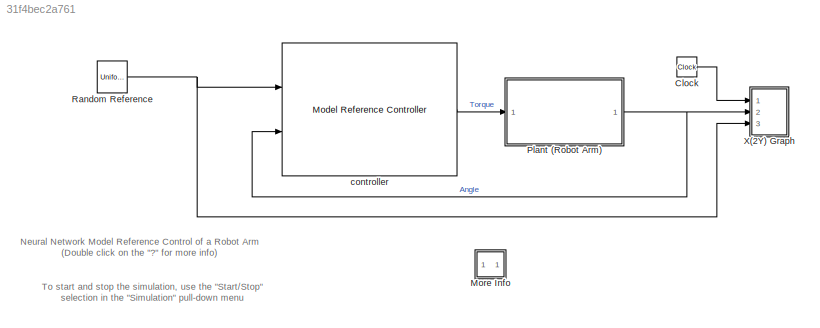
MODEL slx_31f4bec2a761
KIND model
CONFIG AbsTol = 1e-6
CONFIG EnableMultiTasking = off
CONFIG FixedStep = auto
CONFIG MaxStep = auto
CONFIG MinStep = auto
CONFIG RelTol = 1e-3
CONFIG SampleTimeConstraint = Unconstrained
CONFIG Solver = ode45
CONFIG SolverName = ode45
CONFIG StartTime = 0.0
CONFIG StopTime = 60
BLOCK [Clock] Clock
BLOCK [SubSystem] More Info
  Ports = []
  RequestExecContextInheritance = off
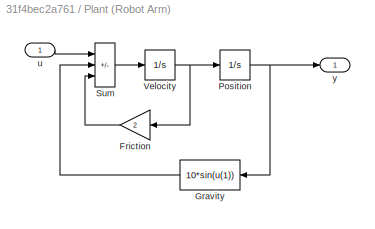
BLOCK [SubSystem] Plant (Robot Arm)
  Ports = [1, 1]
  RequestExecContextInheritance = off
BLOCK [Gain] Plant (Robot Arm)/Friction
  Gain = 2
  OutDataTypeStr = Inherit: Same as input
  ParamDataTypeStr = Inherit: Same as input
  SaturateOnIntegerOverflow = on
BLOCK [Fcn] Plant (Robot Arm)/Gravity
  Expr = 10*sin(u(1))
BLOCK [Integrator] Plant (Robot Arm)/Position
  Ports = [1, 1]
  ZeroCross = off
BLOCK [Sum] Plant (Robot Arm)/Sum
  IconShape = rectangular
  InputSameDT = on
  Inputs = +--
  OutDataTypeStr = Inherit: Same as first input
  Ports = [3, 1]
  SaturateOnIntegerOverflow = on
BLOCK [Integrator] Plant (Robot Arm)/Velocity
  Ports = [1, 1]
  ZeroCross = off
BLOCK [Inport] Plant (Robot Arm)/u
BLOCK [Outport] Plant (Robot Arm)/y
BLOCK [UniformRandomNumber] Random Reference
  Maximum = 0.5
  Minimum = -0.5
  SampleTime = 10
  Seed = round(now)
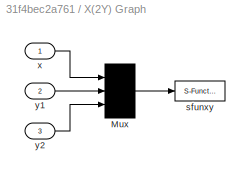
BLOCK [SubSystem] X(2Y) Graph
  CopyFcn = sfunxy2([],[],[],'CopyBlock')
  DeleteFcn = sfunxy2([],[],[],'DeleteBlock')
  LoadFcn = sfunxy2([],[],[],'LoadBlock')
  NameChangeFcn = sfunxy2([],[],[],'NameChange')
  Ports = [3]
  RequestExecContextInheritance = off
  StartFcn = sfunxy2([],[],[],'Start')
  StopFcn = sfunxy2([],[],[],'Stop')
BLOCK [Mux] X(2Y) Graph/Mux
  Inputs = 3
  Ports = [3, 1]
BLOCK [S-Function] X(2Y) Graph/sfunxy
  EnableBusSupport = off
  FunctionName = sfunxy2
  Parameters = [xmin xmax ymin ymax], st
  Ports = [1]
  SFcnIsStateOwnerBlock = off
  SFunctionDeploymentMode = off
BLOCK [Inport] X(2Y) Graph/x
BLOCK [Inport] X(2Y) Graph/y1
  Port = 2
BLOCK [Inport] X(2Y) Graph/y2
  Port = 3
BLOCK [Reference] controller  REF=neural/Control Systems/Model Reference Controller
  NameLocation = top
  Ports = [2, 1]
  SourceBlock = neural/Control Systems/Model Reference Controller
  SourceProductBaseCode = NN
  SourceType = NN Model Reference Control
ANNOTATION (root): Neural Network Model Reference Control of a Robot Arm (Double click on the "?" for more info)
ANNOTATION (root): To start and stop the simulation, use the "Start/Stop" selection in the "Simulation" pull-down menu
ANNOTATION More Info: Double-click on the Model Reference Controller block to train the neural network controller and plant model.
ANNOTATION More Info: For more information on what the controller does, look under the mask of the Model Reference Controller block.
ANNOTATION More Info: This system simulates model reference control of a single-link robot arm.
LINE Clock:1 -> X(2Y) Graph:1
LINE Plant (Robot Arm)/Friction:1 -> Plant (Robot Arm)/Sum:3
LINE Plant (Robot Arm)/Gravity:1 -> Plant (Robot Arm)/Sum:2
NET Plant (Robot Arm)/Position:1 -> Plant (Robot Arm)/Gravity:1, Plant (Robot Arm)/y:1
LINE Plant (Robot Arm)/Sum:1 -> Plant (Robot Arm)/Velocity:1
NET Plant (Robot Arm)/Velocity:1 -> Plant (Robot Arm)/Friction:1, Plant (Robot Arm)/Position:1
LINE Plant (Robot Arm)/u:1 -> Plant (Robot Arm)/Sum:1
NET Plant (Robot Arm):1 -> X(2Y) Graph:2, controller:2
NET Random Reference:1 -> X(2Y) Graph:3, controller:1
LINE controller:1 -> Plant (Robot Arm):1
note: NET lines group one-source signal fan-out (src -> all destinations, sorted); 1:1 wires keep LINE
